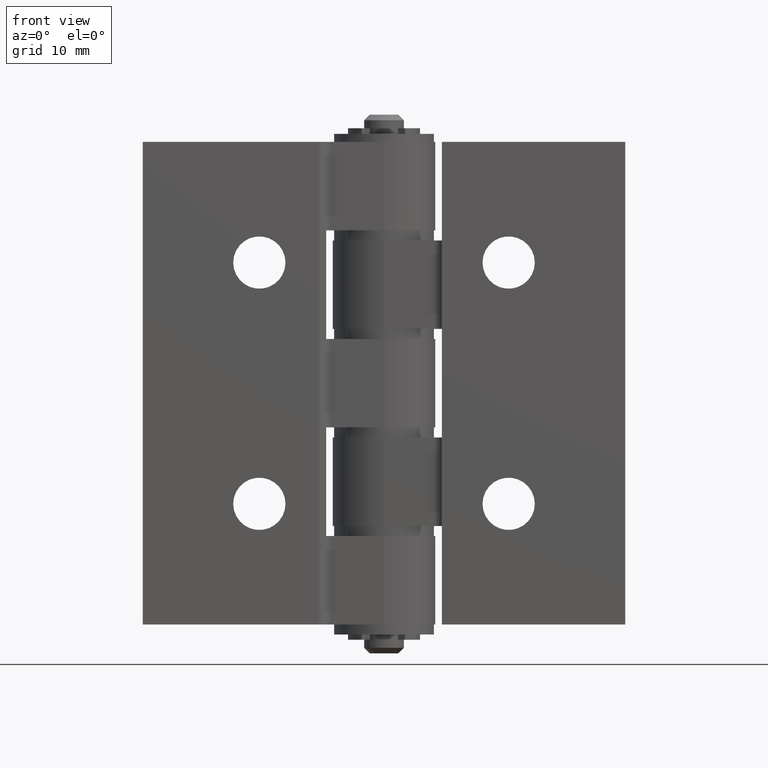
[diagram: clean part render]
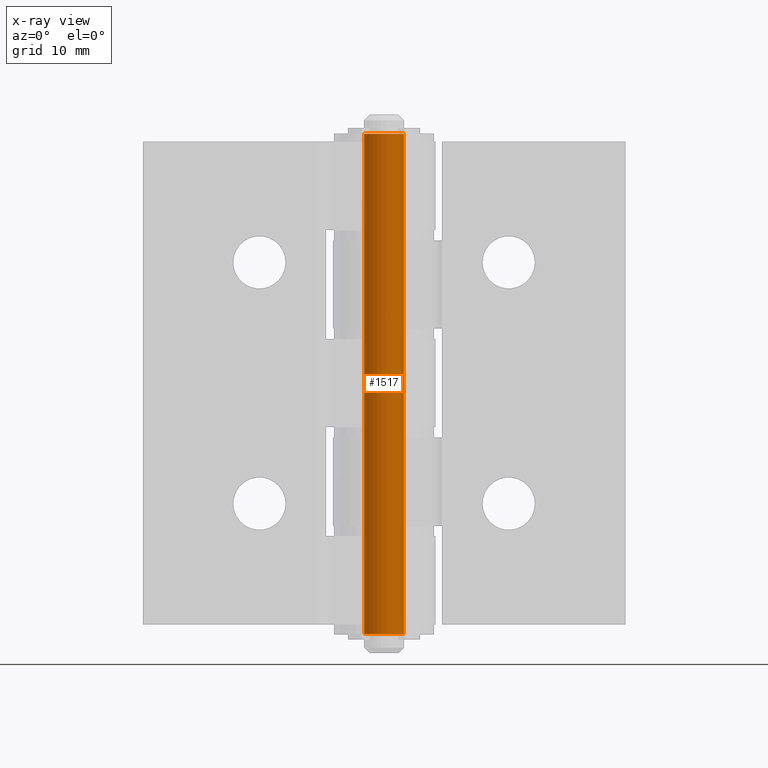
[diagram: x-ray — body ghosted, one internal face saturated and labeled with its STEP entity id]
A machine part, front view, then the same camera in x-ray: the body is ghosted and one INTERNAL B-rep face — a face not visible from any outside direction — is saturated and labeled: STEP entity #1517.
In plain terms, the highlighted cylindrical surface (bore or boss wall) has radius 2.475 mm, axis along (-0, 0, 1).
Its self-contained STEP definition (entity closure, byte-faithful):
#103=FACE_BOUND('',#340,.T.);
#222=FACE_OUTER_BOUND('',#339,.T.);
#339=EDGE_LOOP('',(#1213));
#340=EDGE_LOOP('',(#1214));
#668=CIRCLE('',#1658,2.47499999999999);
#669=CIRCLE('',#1660,2.475);
#778=VERTEX_POINT('',#2464);
#779=VERTEX_POINT('',#2467);
#940=EDGE_CURVE('',#778,#778,#668,.T.);
#941=EDGE_CURVE('',#779,#779,#669,.T.);
#1213=ORIENTED_EDGE('',*,*,#940,.T.);
#1214=ORIENTED_EDGE('',*,*,#941,.F.);
#1455=CYLINDRICAL_SURFACE('',#1659,2.475);
#1517=ADVANCED_FACE('',(#222,#103),#1455,.T.);
#1658=AXIS2_PLACEMENT_3D('',#2465,#1979,#1980);
#1659=AXIS2_PLACEMENT_3D('',#2466,#1981,#1982);
#1660=AXIS2_PLACEMENT_3D('',#2468,#1983,#1984);
#1979=DIRECTION('center_axis',(3.06554118739782E-16,-1.,0.));
#1980=DIRECTION('ref_axis',(1.,3.06554118739782E-16,0.));
#1981=DIRECTION('center_axis',(3.06554118739782E-16,-1.,0.));
#1982=DIRECTION('ref_axis',(1.,0.,0.));
#1983=DIRECTION('center_axis',(3.06554118739782E-16,-1.,0.));
#1984=DIRECTION('ref_axis',(1.,3.06554118739782E-16,0.));
#2464=CARTESIAN_POINT('',(2.47499999999997,64.6,0.));
#2465=CARTESIAN_POINT('Origin',(-1.98033960705899E-14,64.6,0.));
#2466=CARTESIAN_POINT('Origin',(-1.02695629777827E-14,33.5,0.));
#2467=CARTESIAN_POINT('',(2.475,2.4,0.));
#2468=CARTESIAN_POINT('Origin',(-7.35729884975473E-16,2.4,0.));